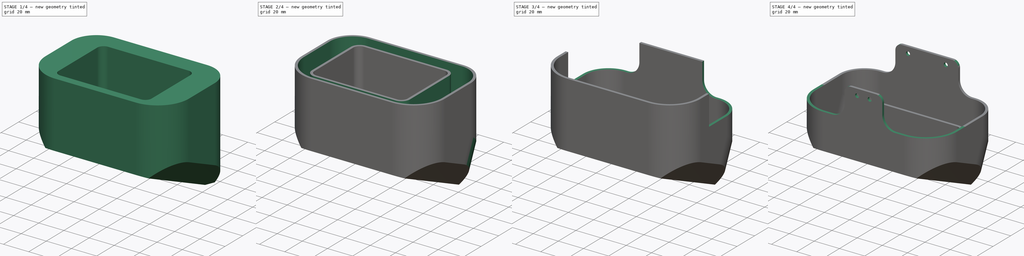
[diagram: build sequence overview — one tinted view per stage of 4, left to right]
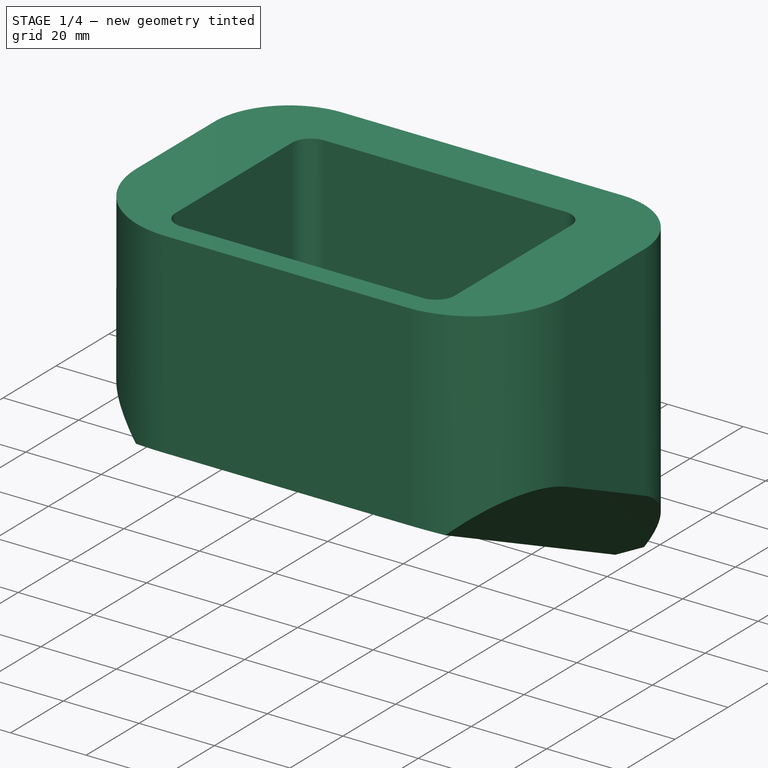
[diagram: stage 1 of 4 — iso view after this stage's code; geometry added in this stage tinted green]
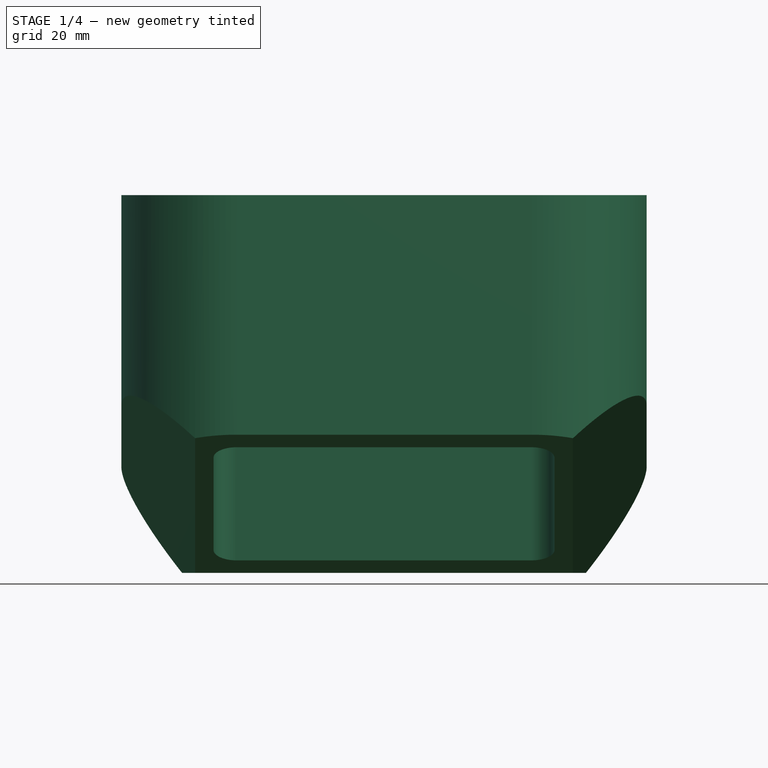
[diagram: stage 1 of 4 — front view after this stage's code; geometry added in this stage tinted green]
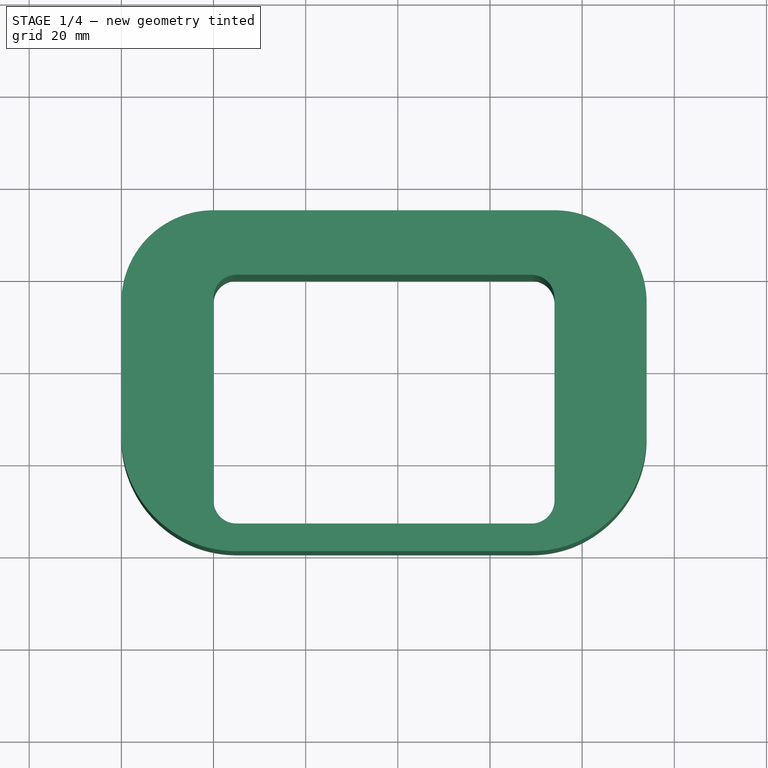
[diagram: stage 1 of 4 — top view after this stage's code; geometry added in this stage tinted green]
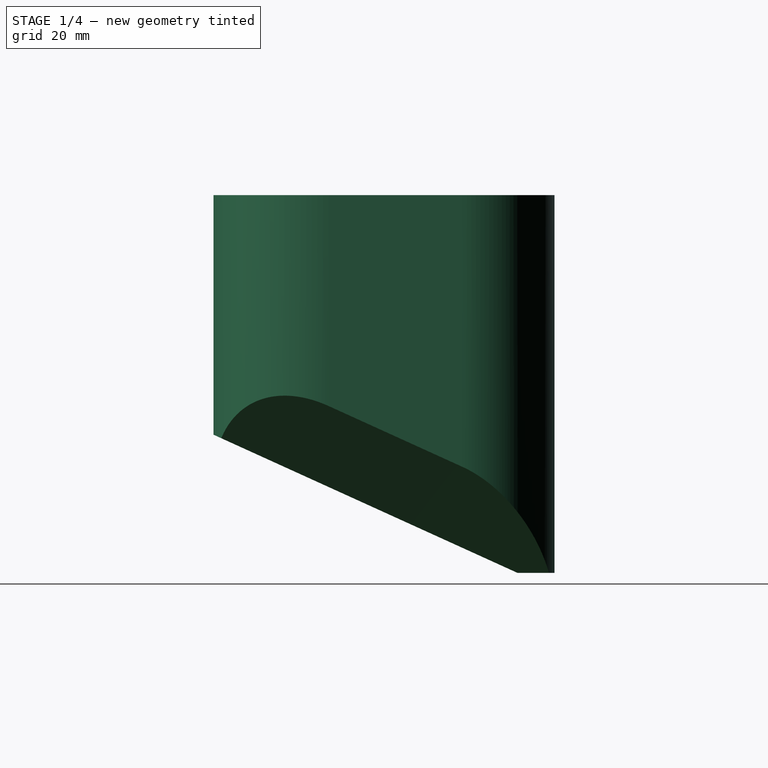
[diagram: stage 1 of 4 — right view after this stage's code; geometry added in this stage tinted green]
FCSTD DOCUMENT  (FreeCAD 0.18R4 (GitTag))
Label: Front_Cover
License: CreativeCommons Attribution-NonCommercial
LicenseURL: http://creativecommons.org/licenses/by-nc/4.0/
objects: Sketcher::SketchObject×11, PartDesign::Pocket×11, PartDesign::Pad×1, PartDesign::Plane×1, PartDesign::Thickness×1, PartDesign::Fillet×1, PartDesign::Body×1
note: 39 computed .brp shape members not serialized (recipe doc carries the construction recipe); baked Part::Feature solids carry a one-line shape summary decoded from their .brp

FEATURE [Sketcher::SketchObject] Sketch
  MapMode = 5
  Support = -> [XY_Plane]
  sketch-geometry (8):
    g0: ArcOfCircle CenterX=25 CenterY=25 CenterZ=0 NormalX=0 NormalY=0 NormalZ=1 AngleXU=0 Radius=25 StartAngle=3.14159 EndAngle=4.71239
    g1: ArcOfCircle CenterX=20 CenterY=54 CenterZ=0 NormalX=0 NormalY=0 NormalZ=1 AngleXU=0 Radius=20 StartAngle=1.5708 EndAngle=3.14159
    g2: ArcOfCircle CenterX=94 CenterY=54 CenterZ=0 NormalX=0 NormalY=0 NormalZ=1 AngleXU=0 Radius=20 StartAngle=0 EndAngle=1.5708
    g3: ArcOfCircle CenterX=89 CenterY=25 CenterZ=0 NormalX=0 NormalY=0 NormalZ=1 AngleXU=0 Radius=25 StartAngle=4.71239 EndAngle=6.28319
    g4: LineSegment StartX=0 StartY=54 StartZ=0 EndX=0 EndY=25 EndZ=0
    g5: LineSegment StartX=25 StartY=0 StartZ=0 EndX=89 EndY=0 EndZ=0
    g6: LineSegment StartX=114 StartY=25 StartZ=0 EndX=114 EndY=54 EndZ=0
    g7: LineSegment StartX=20 StartY=74 StartZ=0 EndX=94 EndY=74 EndZ=0
  constraints (21):
    c: Tangent(g1,g4) = -1.5708
    c: Tangent(g3,g6) = -1.5708
    c: Horizontal(g7)
    c: Vertical(g4)
    c: Vertical(g6)
    c: Horizontal(g5)
    c: Horizontal(g3,g0)
    c: Horizontal(g1,g2)
    c: Coincident(g0,g5)
    c: Vertical(g0,g0)
    c: Radius(g2) = 20
    c: Radius(g3) = 25
    c: PointOnObject(g0,g-1)
    c: Tangent(g4,g0) = -1.5708
    c: Tangent(g7,g1) = 1.5708
    c: Tangent(g7,g2) = 1.5708
    c: Tangent(g6,g2) = -1.5708
    c: Tangent(g5,g3) = -1.5708
    c: DistanceX(g1,g2) = 114
    c: DistanceY(g0,g1) = 74
    c: PointOnObject(g0,g-2)
FEATURE [PartDesign::Pad] Pad  label="Baseplate"
  Length = 82
  Length2 = 100
  Profile = -> Sketch
  Type = 0
FEATURE [Sketcher::SketchObject] Sketch001
  MapMode = 5
  Placement = pos=(0,0,0) rot=(0.57735,0.57735,0.57735;2.0944rad)
  Support = -> [YZ_Plane]
  sketch-geometry (3):
    g0: LineSegment StartX=0 StartY=0 StartZ=0 EndX=0 EndY=30 EndZ=0
    g1: LineSegment StartX=0 StartY=30 StartZ=0 EndX=66 EndY=0 EndZ=0
    g2: LineSegment StartX=66 StartY=0 StartZ=0 EndX=0 EndY=0 EndZ=0
  constraints (9):
    c: Coincident(g-1,g0)
    c: PointOnObject(g0,g-2)
    c: Coincident(g0,g1)
    c: PointOnObject(g1,g-1)
    c: Coincident(g1,g2)
    c: DistanceY(g0,g0) = 30
    c: DistanceX(g2,g2) = 66
    c: Coincident(g2,g0)
    c: Angle(g0,g1) = 1.14417
FEATURE [PartDesign::Pocket] Pocket  label="Tilt Nose"
  BaseFeature = -> Pad
  Length = 114
  Length2 = 100
  Profile = -> Sketch001
  Reversed = true
  Type = 0
FEATURE [Sketcher::SketchObject] Sketch002
  MapMode = 5
  Placement = pos=(0,0,82) rot=(0,0,1;0rad)
  Support = -> [Pocket]
  sketch-geometry (8):
    g0: LineSegment StartX=25 StartY=60 StartZ=0 EndX=89 EndY=60 EndZ=0
    g1: LineSegment StartX=94 StartY=55 StartZ=0 EndX=94 EndY=11 EndZ=0
    g2: LineSegment StartX=89 StartY=6 StartZ=0 EndX=25 EndY=6 EndZ=0
    g3: LineSegment StartX=20 StartY=11 StartZ=0 EndX=20 EndY=55 EndZ=0
    g4: ArcOfCircle CenterX=25 CenterY=55 CenterZ=0 NormalX=0 NormalY=0 NormalZ=1 AngleXU=0 Radius=5 StartAngle=1.5708 EndAngle=3.14159
    g5: ArcOfCircle CenterX=89 CenterY=55 CenterZ=0 NormalX=0 NormalY=0 NormalZ=1 AngleXU=0 Radius=5 StartAngle=0 EndAngle=1.5708
    g6: ArcOfCircle CenterX=89 CenterY=11 CenterZ=0 NormalX=0 NormalY=0 NormalZ=1 AngleXU=0 Radius=5 StartAngle=4.71239 EndAngle=6.28319
    g7: ArcOfCircle CenterX=25 CenterY=11 CenterZ=0 NormalX=0 NormalY=0 NormalZ=1 AngleXU=0 Radius=5 StartAngle=3.14159 EndAngle=4.71239
  constraints (20):
    c: Horizontal(g0)
    c: Horizontal(g2)
    c: Vertical(g1)
    c: Vertical(g3)
    c: Tangent(g3,g4) = 1.5708
    c: Tangent(g0,g4) = 1.5708
    c: Tangent(g0,g5) = 1.5708
    c: Tangent(g1,g5) = 1.5708
    c: Tangent(g1,g6) = 1.5708
    c: Tangent(g2,g6) = 1.5708
    c: Tangent(g2,g7) = 1.5708
    c: Tangent(g3,g7) = 1.5708
    c: Equal(g4,g7)
    c: Equal(g7,g5)
    c: Equal(g5,g6)
    c: Radius(g5) = 5
    c: DistanceX(g-1,g3) = 20
    c: DistanceY(g-1,g7) = 11
    c: DistanceX(g4,g5) = 64
    c: DistanceY(g6,g5) = 44
FEATURE [PartDesign::Pocket] Pocket001  label="Sensorhole"
  BaseFeature = -> Pocket
  Length = 0
  Length2 = 100
  Profile = -> Sketch002
  Type = 1
FEATURE [PartDesign::Plane] DatumPlane
  Length = 148.245
  MapMode = 7
  Placement = pos=(0,25,18.6364) rot=(1,0,0;1.14417rad)
  ResizeMode = 0
  Support = -> [Pocket001]
  Width = 142.758
FEATURE [Sketcher::SketchObject] Sketch003
  MapMode = 5
  Placement = pos=(0,25,18.6364) rot=(1,0,0;1.14417rad)
  Support = -> [DatumPlane]
  sketch-geometry (6):
    g0: LineSegment StartX=0 StartY=0 StartZ=0 EndX=0 EndY=16 EndZ=0
    g1: LineSegment StartX=0 StartY=16 StartZ=0 EndX=16 EndY=0 EndZ=0
    g2: LineSegment StartX=16 StartY=0 StartZ=0 EndX=0 EndY=0 EndZ=0
    g3: LineSegment StartX=98 StartY=0 StartZ=0 EndX=114 EndY=0 EndZ=0
    g4: LineSegment StartX=114 StartY=0 StartZ=0 EndX=114 EndY=16 EndZ=0
    g5: LineSegment StartX=114 StartY=16 StartZ=0 EndX=98 EndY=0 EndZ=0
  constraints (18):
    c: PointOnObject(g0,g-2)
    c: Vertical(g0)
    c: Coincident(g0,g1)
    c: PointOnObject(g1,g-1)
    c: Coincident(g1,g2)
    c: Coincident(g2,g0)
    c: Horizontal(g2)
    c: Horizontal(g3)
    c: Coincident(g3,g4)
    c: Vertical(g4)
    c: Coincident(g4,g5)
    c: Equal(g0,g2)
    c: Equal(g4,g3)
    c: Coincident(g5,g3)
    c: PointOnObject(g3,g-1)
    c: Equal(g2,g3)
    c: DistanceX(g0,g3) = 114
    c: DistanceX(g2,g2) = 16
FEATURE [PartDesign::Pocket] Pocket002  label="Sideburns"
  BaseFeature = -> Pocket001
  Length = 100
  Length2 = 100
  Profile = -> Sketch003
  Type = 4
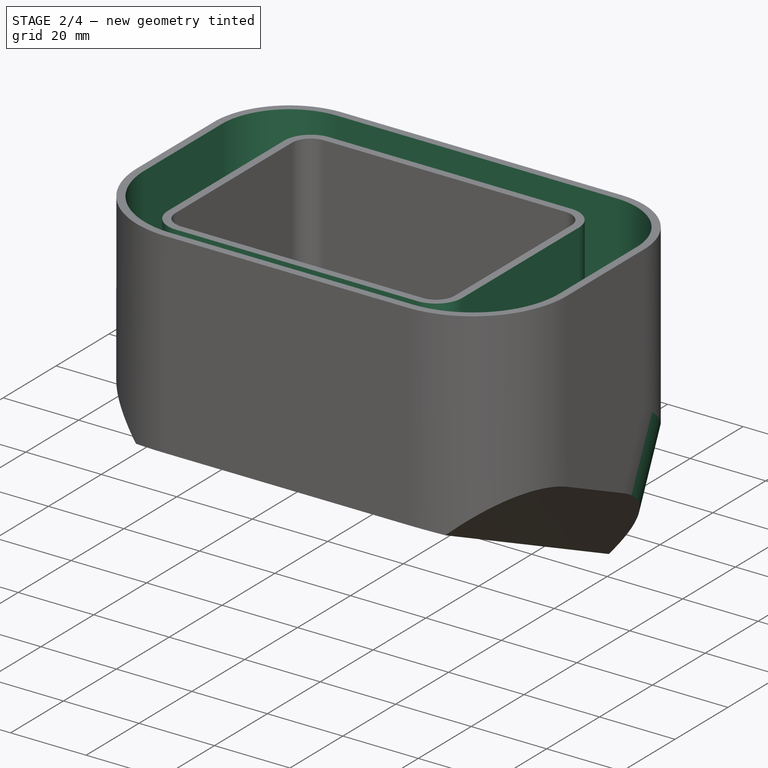
[diagram: stage 2 of 4 — iso view after this stage's code; geometry added in this stage tinted green]
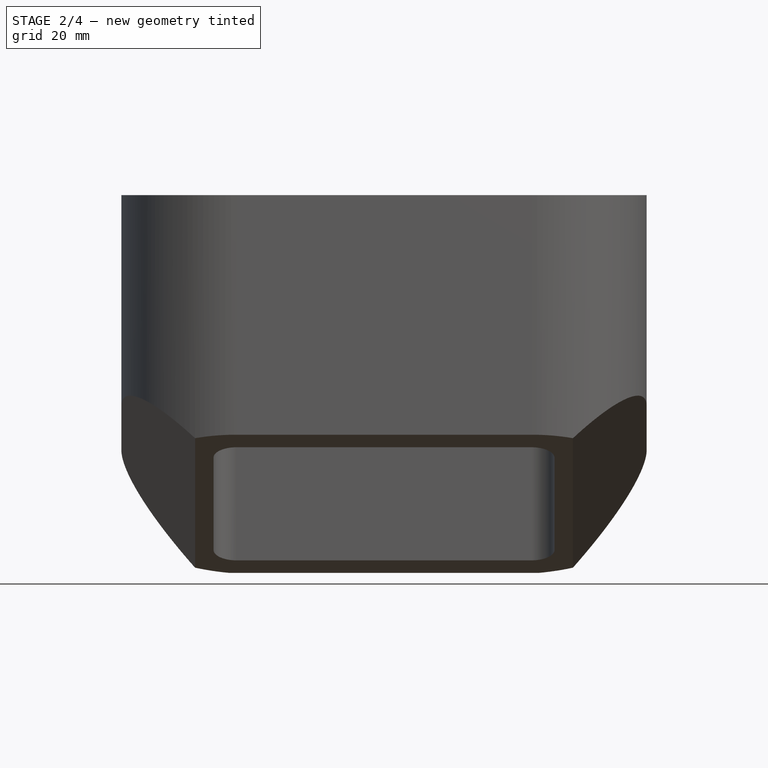
[diagram: stage 2 of 4 — front view after this stage's code; geometry added in this stage tinted green]
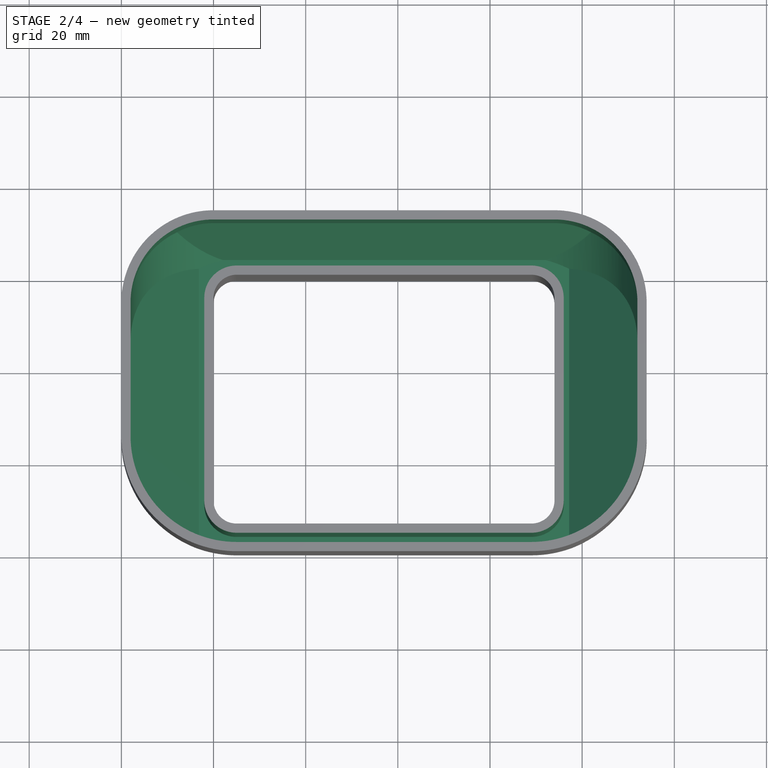
[diagram: stage 2 of 4 — top view after this stage's code; geometry added in this stage tinted green]
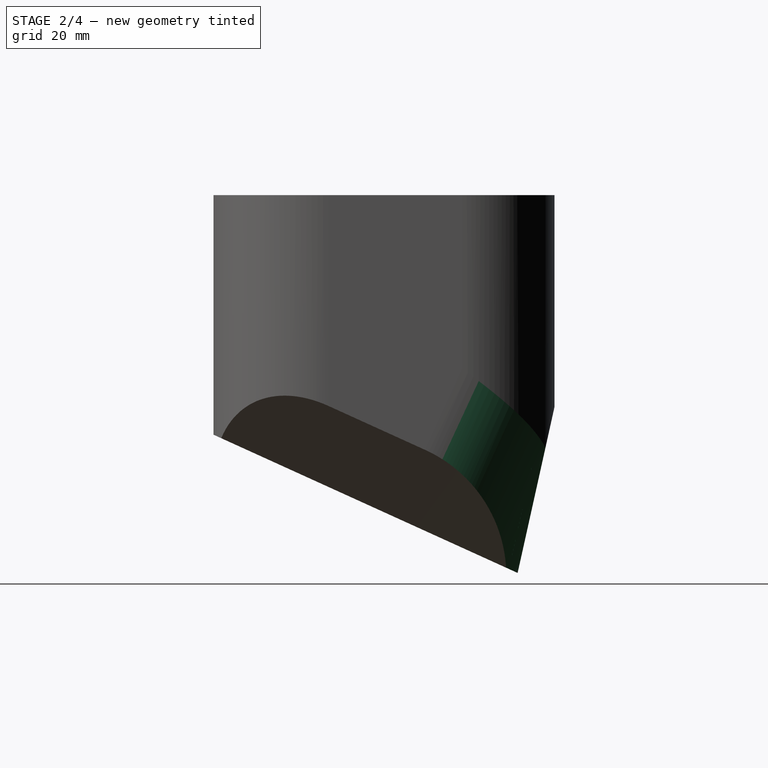
[diagram: stage 2 of 4 — right view after this stage's code; geometry added in this stage tinted green]
FEATURE [Sketcher::SketchObject] Sketch004
  MapMode = 5
  Placement = pos=(0,0,0) rot=(0.57735,0.57735,0.57735;2.0944rad)
  Support = -> [YZ_Plane]
  sketch-geometry (3):
    g0: LineSegment StartX=66 StartY=0 StartZ=0 EndX=76 EndY=45 EndZ=0
    g1: LineSegment StartX=76 StartY=45 StartZ=0 EndX=76 EndY=0 EndZ=0
    g2: LineSegment StartX=76 StartY=0 StartZ=0 EndX=66 EndY=0 EndZ=0
  constraints (9):
    c: PointOnObject(g0,g-1)
    c: Coincident(g0,g1)
    c: PointOnObject(g1,g-1)
    c: Vertical(g1)
    c: Coincident(g1,g2)
    c: Coincident(g2,g0)
    c: DistanceX(g-1,g0) = 66
    c: DistanceX(g2,g2) = 10
    c: DistanceY(g1,g1) = 45
FEATURE [PartDesign::Pocket] Pocket003  label="Tilt Head"
  BaseFeature = -> Pocket002
  Length = 110
  Length2 = 100
  Profile = -> Sketch004
  Reversed = true
  Type = 0
FEATURE [Sketcher::SketchObject] Sketch005
  MapMode = 5
  Placement = pos=(-4.4e-15,11.3014,24.863) rot=(1,0,0;2.71496rad)
  Support = -> [Pocket003]
  sketch-geometry (6):
    g0: ArcOfCircle CenterX=30 CenterY=-30.8 CenterZ=0 NormalX=0 NormalY=0 NormalZ=1 AngleXU=0 Radius=30 StartAngle=3.14159 EndAngle=4.71239
    g1: ArcOfCircle CenterX=84 CenterY=-30.8 CenterZ=0 NormalX=0 NormalY=0 NormalZ=1 AngleXU=0 Radius=30 StartAngle=4.71239 EndAngle=6.28319
    g2: LineSegment StartX=30 StartY=-60.8 StartZ=0 EndX=84 EndY=-60.8 EndZ=0
    g3: LineSegment StartX=114 StartY=-30.8 StartZ=0 EndX=114 EndY=-80.8 EndZ=0
    g4: LineSegment StartX=114 StartY=-80.8 StartZ=0 EndX=0 EndY=-80.8 EndZ=0
    g5: LineSegment StartX=0 StartY=-80.8 StartZ=0 EndX=0 EndY=-30.8 EndZ=0
  constraints (16):
    c: PointOnObject(g0,g-2)
    c: Horizontal(g2)
    c: Coincident(g3,g4)
    c: Horizontal(g4)
    c: Coincident(g4,g5)
    c: Tangent(g0,g5) = 1.5708
    c: PointOnObject(g4,g-2)
    c: Tangent(g1,g3) = 1.5708
    c: Vertical(g3)
    c: Tangent(g2,g0) = -1.5708
    c: Tangent(g2,g1) = -1.5708
    c: Equal(g0,g1)
    c: Radius(g1) = 30
    c: DistanceX(g4,g4) = 114
    c: DistanceY(g0,g-1) = 60.8
    c: DistanceY(g4,g0) = 20
FEATURE [PartDesign::Pocket] Pocket004  label="Round Tilt Head"
  BaseFeature = -> Pocket003
  Length = 50
  Length2 = 100
  Profile = -> Sketch005
  Type = 0
FEATURE [PartDesign::Thickness] Thickness  label="Make Shell"
  Base = -> Pocket004 [Face5]
  BaseFeature = -> Pocket004
  Join = 0
  Mode = 0
  Reversed = true
  Value = 2
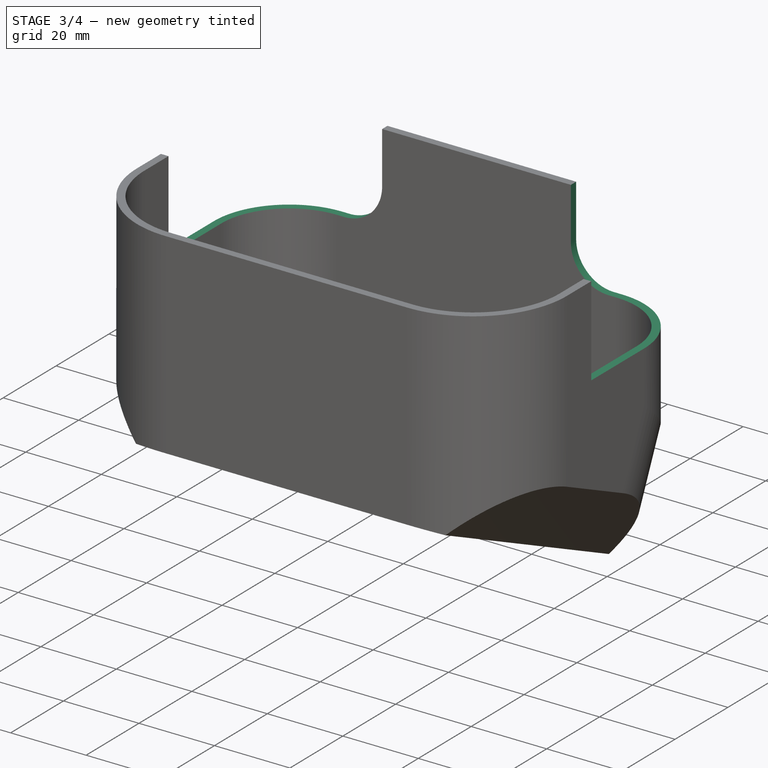
[diagram: stage 3 of 4 — iso view after this stage's code; geometry added in this stage tinted green]
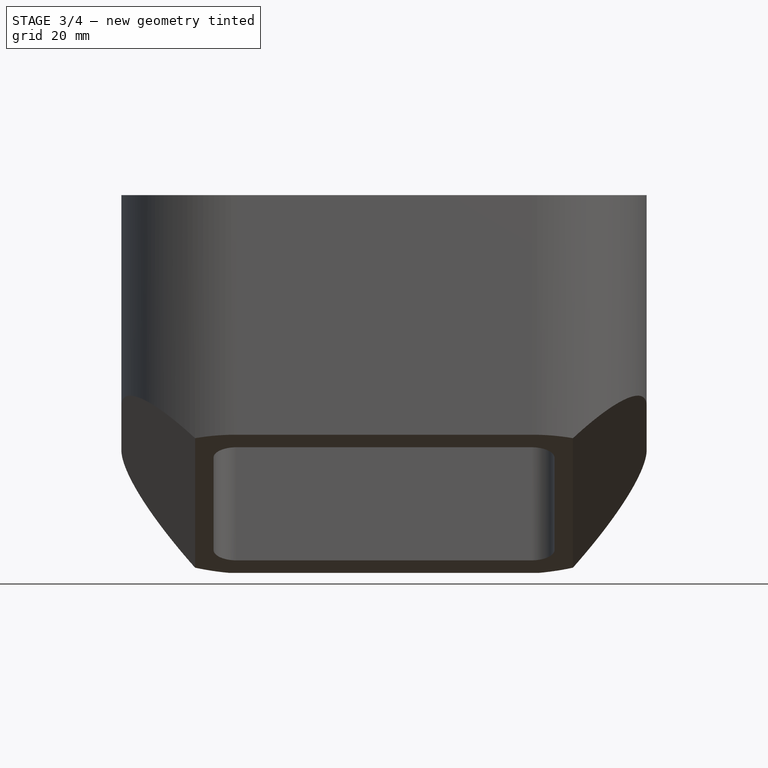
[diagram: stage 3 of 4 — front view after this stage's code; geometry added in this stage tinted green]
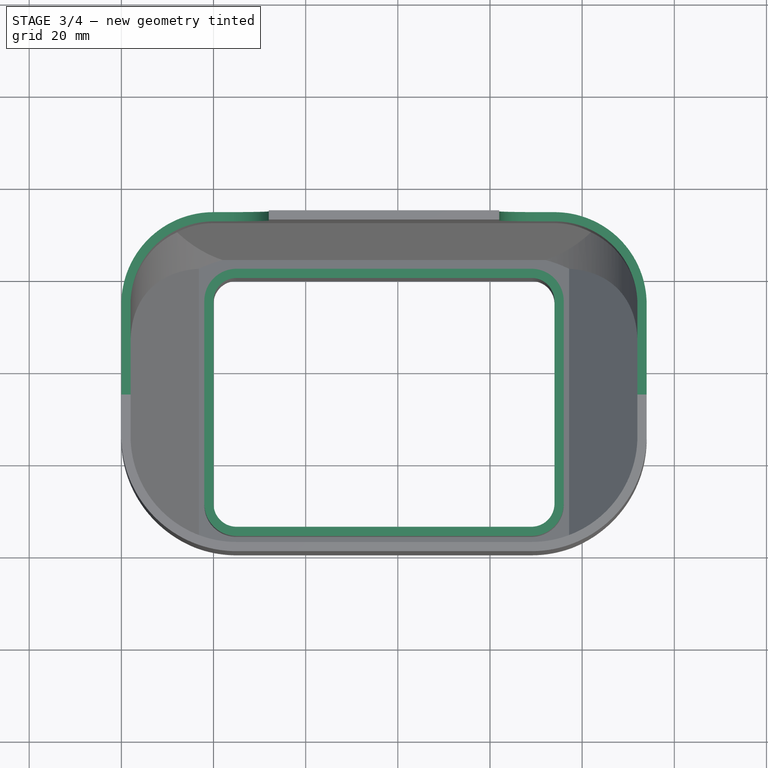
[diagram: stage 3 of 4 — top view after this stage's code; geometry added in this stage tinted green]
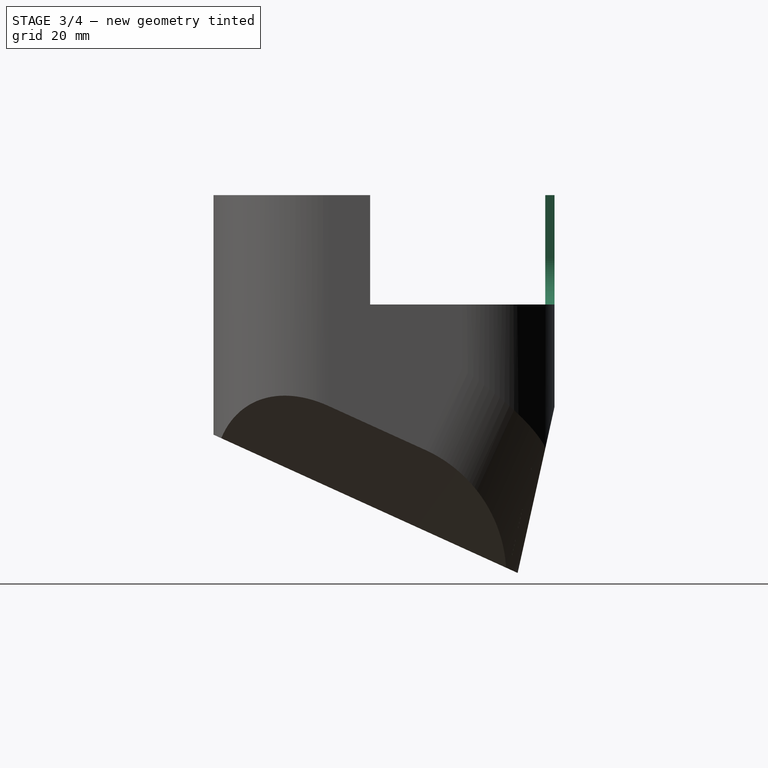
[diagram: stage 3 of 4 — right view after this stage's code; geometry added in this stage tinted green]
FEATURE [Sketcher::SketchObject] Sketch006
  MapMode = 5
  Placement = pos=(20,0,0) rot=(0.57735,0.57735,0.57735;2.0944rad)
  sketch-geometry (1):
    g0: Circle CenterX=33 CenterY=37 CenterZ=0 NormalX=0 NormalY=0 NormalZ=1 AngleXU=0 Radius=1.6
  constraints (3):
    c: DistanceX(g-1,g0) = 33
    c: DistanceY(g-1,g0) = 37
    c: Radius(g0) = 1.6
FEATURE [PartDesign::Pocket] Pocket006  label="Sensorhole Screwholes"
  BaseFeature = -> Thickness
  Length = 5
  Length2 = 83
  Profile = -> Sketch006
  Type = 4
FEATURE [Sketcher::SketchObject] Sketch007
  MapMode = 5
  Placement = pos=(0,74,0) rot=(0,0.707107,0.707107;3.14159rad)
  Support = -> [Pocket006]
  sketch-geometry (10):
    g0: LineSegment StartX=-114 StartY=82 StartZ=0 EndX=-82 EndY=82 EndZ=0
    g1: LineSegment StartX=-82 StartY=82 StartZ=0 EndX=-82 EndY=68.25 EndZ=0
    g2: LineSegment StartX=-92 StartY=58.25 StartZ=0 EndX=-114 EndY=58.25 EndZ=0
    g3: LineSegment StartX=-114 StartY=58.25 StartZ=0 EndX=-114 EndY=82 EndZ=0
    g4: LineSegment StartX=0 StartY=82 StartZ=0 EndX=-32 EndY=82 EndZ=0
    g5: LineSegment StartX=-32 StartY=82 StartZ=0 EndX=-32 EndY=68.25 EndZ=0
    g6: LineSegment StartX=-22 StartY=58.25 StartZ=0 EndX=0 EndY=58.25 EndZ=0
    g7: LineSegment StartX=0 StartY=58.25 StartZ=0 EndX=0 EndY=82 EndZ=0
    g8: ArcOfCircle CenterX=-92 CenterY=68.25 CenterZ=0 NormalX=0 NormalY=0 NormalZ=1 AngleXU=0 Radius=10 StartAngle=4.71239 EndAngle=6.28319
    g9: ArcOfCircle CenterX=-22 CenterY=68.25 CenterZ=0 NormalX=0 NormalY=0 NormalZ=1 AngleXU=0 Radius=10 StartAngle=3.14159 EndAngle=4.71239
  constraints (28):
    c: Coincident(g0,g1)
    c: Coincident(g2,g3)
    c: Coincident(g3,g0)
    c: Horizontal(g0)
    c: Horizontal(g2)
    c: Vertical(g1)
    c: Vertical(g3)
    c: Coincident(g4,g5)
    c: Coincident(g6,g7)
    c: Coincident(g7,g4)
    c: Horizontal(g4)
    c: Horizontal(g6)
    c: Vertical(g5)
    c: Vertical(g7)
    c: PointOnObject(g4,g-2)
    c: Tangent(g2,g8) = 1.5708
    c: Tangent(g1,g8) = 1.5708
    c: Tangent(g5,g9) = -1.5708
    c: Tangent(g6,g9) = -1.5708
    c: Equal(g9,g8)
    c: Radius(g8) = 10
    c: Horizontal(g0,g4)
    c: Equal(g0,g4)
    c: Equal(g3,g7)
    c: DistanceX(g0,g4) = 50
    c: DistanceX(g0,g4) = 114
    c: DistanceY(g3,g3) = 23.75
    c: DistanceY(g-1,g4) = 82
FEATURE [PartDesign::Pocket] Pocket011
  BaseFeature = -> Pocket006
  Length = 40
  Length2 = 100
  Profile = -> Pocket006 [Face38]
  Type = 0
FEATURE [PartDesign::Pocket] Pocket007  label="Top Removal"
  BaseFeature = -> Pocket011
  Length = 40
  Length2 = 100
  Profile = -> Sketch007
  Type = 0
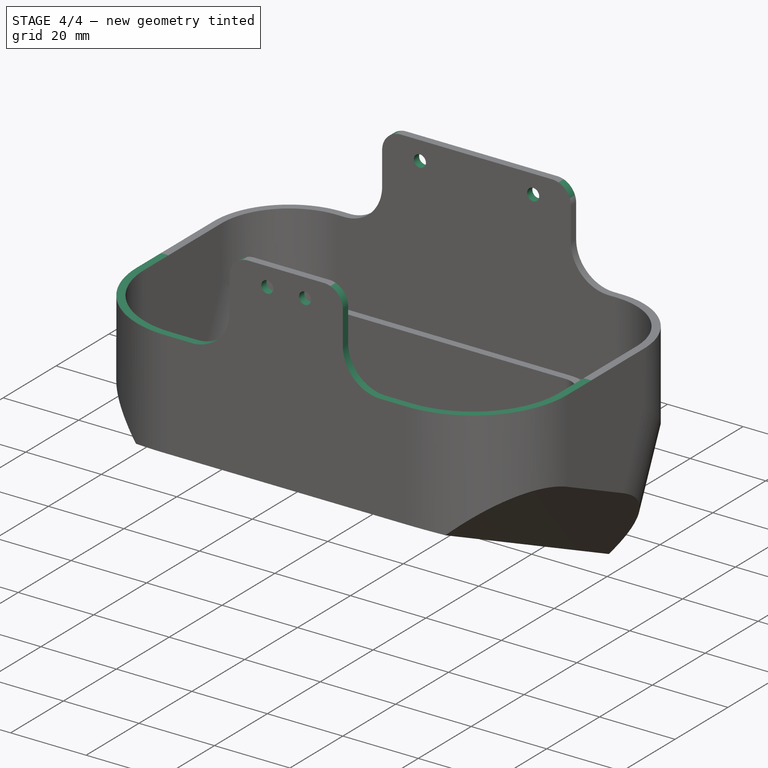
[diagram: stage 4 of 4 — iso view after this stage's code; geometry added in this stage tinted green]
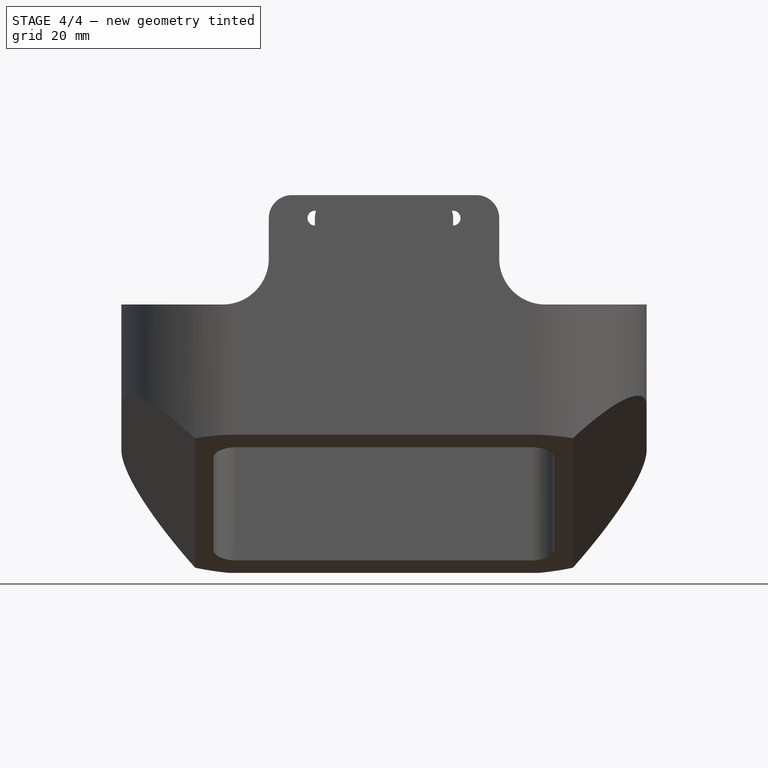
[diagram: stage 4 of 4 — front view after this stage's code; geometry added in this stage tinted green]
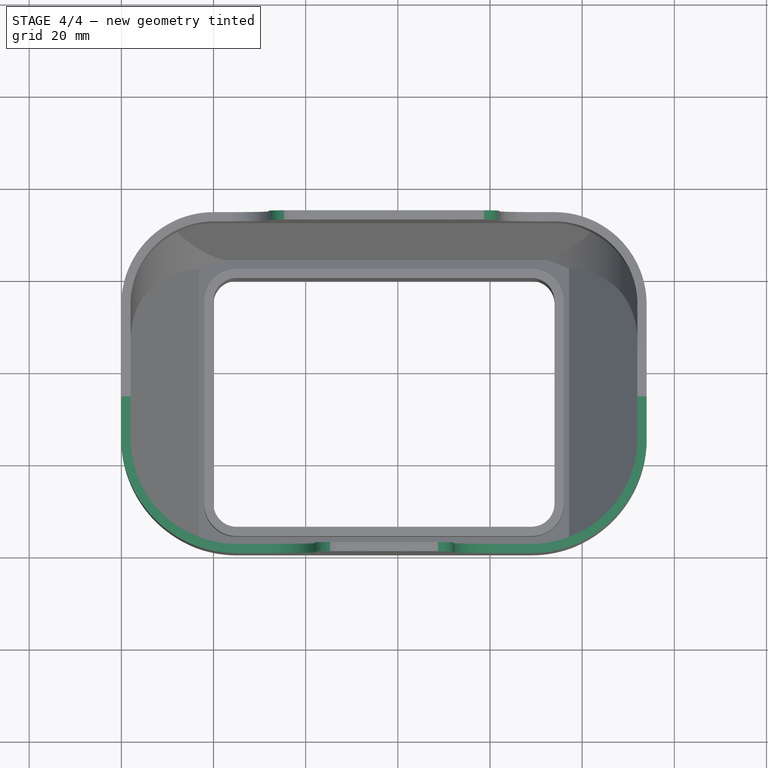
[diagram: stage 4 of 4 — top view after this stage's code; geometry added in this stage tinted green]
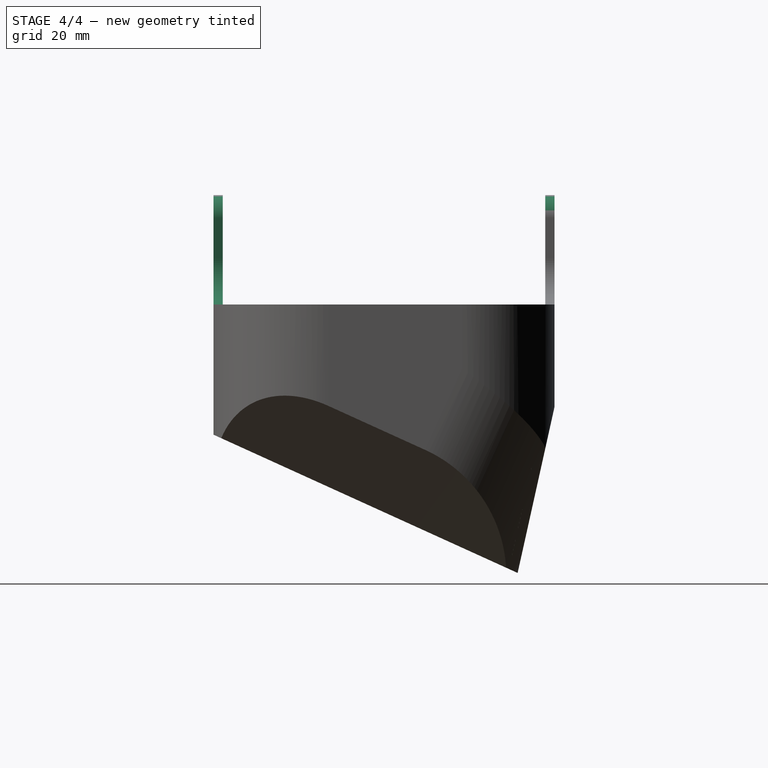
[diagram: stage 4 of 4 — right view after this stage's code; geometry added in this stage tinted green]
FEATURE [Sketcher::SketchObject] Sketch008
  MapMode = 5
  Placement = pos=(0,0,0) rot=(1,0,0;1.5708rad)
  Support = -> [Pocket007]
  sketch-geometry (10):
    g0: LineSegment StartX=0 StartY=82 StartZ=0 EndX=42 EndY=82 EndZ=0
    g1: LineSegment StartX=42 StartY=82 StartZ=0 EndX=42 EndY=68.25 EndZ=0
    g2: LineSegment StartX=32 StartY=58.25 StartZ=0 EndX=0 EndY=58.25 EndZ=0
    g3: LineSegment StartX=0 StartY=58.25 StartZ=0 EndX=0 EndY=82 EndZ=0
    g4: LineSegment StartX=114 StartY=82 StartZ=0 EndX=72 EndY=82 EndZ=0
    g5: LineSegment StartX=72 StartY=82 StartZ=0 EndX=72 EndY=68.25 EndZ=0
    g6: LineSegment StartX=82 StartY=58.25 StartZ=0 EndX=114 EndY=58.25 EndZ=0
    g7: LineSegment StartX=114 StartY=58.25 StartZ=0 EndX=114 EndY=82 EndZ=0
    g8: ArcOfCircle CenterX=32 CenterY=68.25 CenterZ=0 NormalX=0 NormalY=0 NormalZ=1 AngleXU=0 Radius=10 StartAngle=4.71239 EndAngle=6.28319
    g9: ArcOfCircle CenterX=82 CenterY=68.25 CenterZ=0 NormalX=0 NormalY=0 NormalZ=1 AngleXU=0 Radius=10 StartAngle=3.14159 EndAngle=4.71239
  constraints (28):
    c: Coincident(g0,g1)
    c: Coincident(g2,g3)
    c: Coincident(g3,g0)
    c: Horizontal(g0)
    c: Horizontal(g2)
    c: Vertical(g1)
    c: Vertical(g3)
    c: PointOnObject(g0,g-2)
    c: Coincident(g4,g5)
    c: Coincident(g6,g7)
    c: Coincident(g7,g4)
    c: Horizontal(g4)
    c: Horizontal(g6)
    c: Vertical(g5)
    c: Vertical(g7)
    c: Tangent(g2,g8) = 1.5708
    c: Tangent(g1,g8) = 1.5708
    c: Tangent(g5,g9) = -1.5708
    c: Tangent(g6,g9) = -1.5708
    c: Radius(g8) = 10
    c: Equal(g8,g9)
    c: Equal(g0,g4)
    c: Equal(g3,g7)
    c: Horizontal(g0,g4)
    c: DistanceX(g0,g4) = 30
    c: DistanceX(g0,g4) = 114
    c: DistanceY(g3,g3) = 23.75
    c: DistanceY(g-1,g0) = 82
FEATURE [PartDesign::Pocket] Pocket008  label="Bottom Removal"
  BaseFeature = -> Pocket007
  Length = 40
  Length2 = 100
  Profile = -> Sketch008
  Type = 0
FEATURE [PartDesign::Fillet] Fillet  label="Round Corners"
  Base = -> Pocket008 [Edge83,Edge84,Edge147,Edge146]
  BaseFeature = -> Pocket008
  Radius = 5
FEATURE [Sketcher::SketchObject] Sketch009
  MapMode = 5
  Placement = pos=(0,74,0) rot=(0,0.707107,0.707107;3.14159rad)
  Support = -> [Fillet]
  sketch-geometry (2):
    g0: Circle CenterX=-72 CenterY=77 CenterZ=0 NormalX=0 NormalY=0 NormalZ=1 AngleXU=0 Radius=1.6
    g1: Circle CenterX=-42 CenterY=77 CenterZ=0 NormalX=0 NormalY=0 NormalZ=1 AngleXU=0 Radius=1.6
  constraints (6):
    c: Equal(g1,g0)
    c: Horizontal(g0,g1)
    c: Radius(g1) = 1.6
    c: DistanceX(g0,g1) = 30
    c: DistanceX(g1,g-1) = 42
    c: DistanceY(g-1,g1) = 77
FEATURE [PartDesign::Pocket] Pocket009  label="Screwholes Top"
  BaseFeature = -> Fillet
  Length = 5
  Length2 = 100
  Profile = -> Sketch009
  Type = 0
FEATURE [Sketcher::SketchObject] Sketch010
  MapMode = 5
  Placement = pos=(0,0,0) rot=(1,0,0;1.5708rad)
  Support = -> [Pocket009]
  sketch-geometry (2):
    g0: Circle CenterX=52 CenterY=77 CenterZ=0 NormalX=0 NormalY=0 NormalZ=1 AngleXU=0 Radius=1.6
    g1: Circle CenterX=62 CenterY=77 CenterZ=0 NormalX=0 NormalY=0 NormalZ=1 AngleXU=0 Radius=1.6
  constraints (6):
    c: Equal(g1,g0)
    c: Radius(g1) = 1.6
    c: Horizontal(g0,g1)
    c: DistanceX(g0,g1) = 10
    c: DistanceY(g-1,g1) = 77
    c: DistanceX(g-1,g0) = 52
FEATURE [PartDesign::Pocket] Pocket010  label="Screwholes Bottom"
  BaseFeature = -> Pocket009
  Length = 5
  Length2 = 100
  Profile = -> Sketch010
  Type = 0
FEATURE [PartDesign::Body] Body  label="Front_Cover"
  Group = -> [Sketch,Pad,Sketch001,Pocket,Sketch002,Pocket001,DatumPlane,Sketch003,Pocket002,Sketch004,Pocket003,Sketch005,Pocket004,Thickness,Sketch006,Pocket006,Sketch007,Pocket011,Pocket007,Sketch008,Pocket008,Fillet,Sketch009,Pocket009,Sketch010,Pocket010]
  Origin = -> Origin
  Placement = pos=(0,0,0) rot=(1,0,0;0.426558rad)
  Tip = -> Pocket010
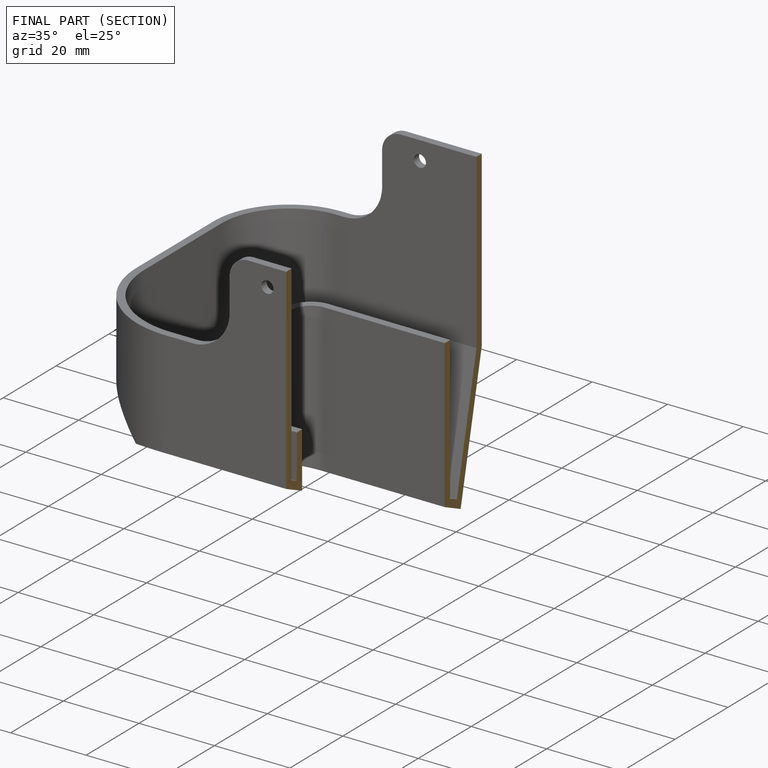
[diagram: finished part — half-section view (interior)]
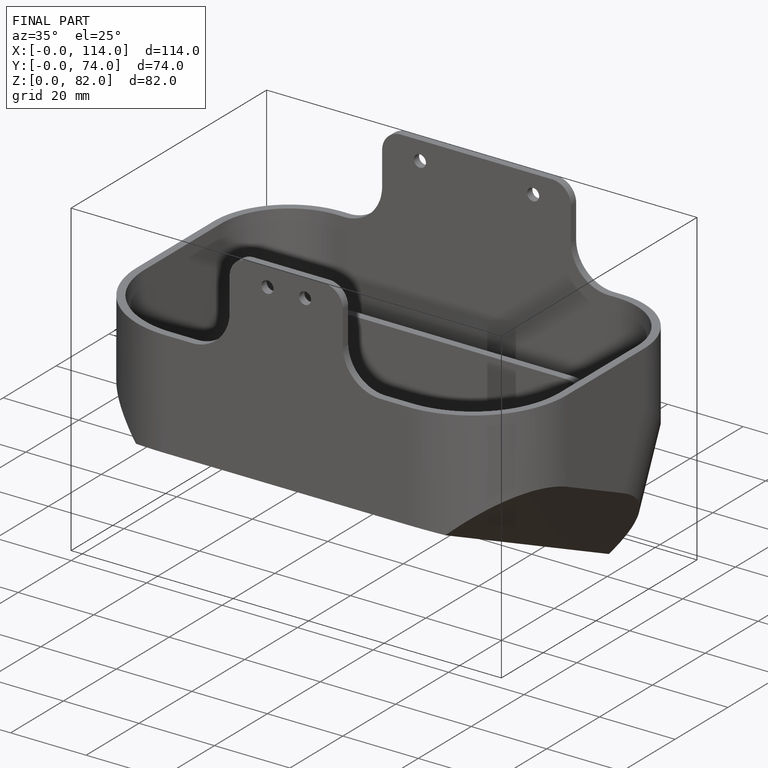
[diagram: finished part — iso view with bounding-box wireframe]
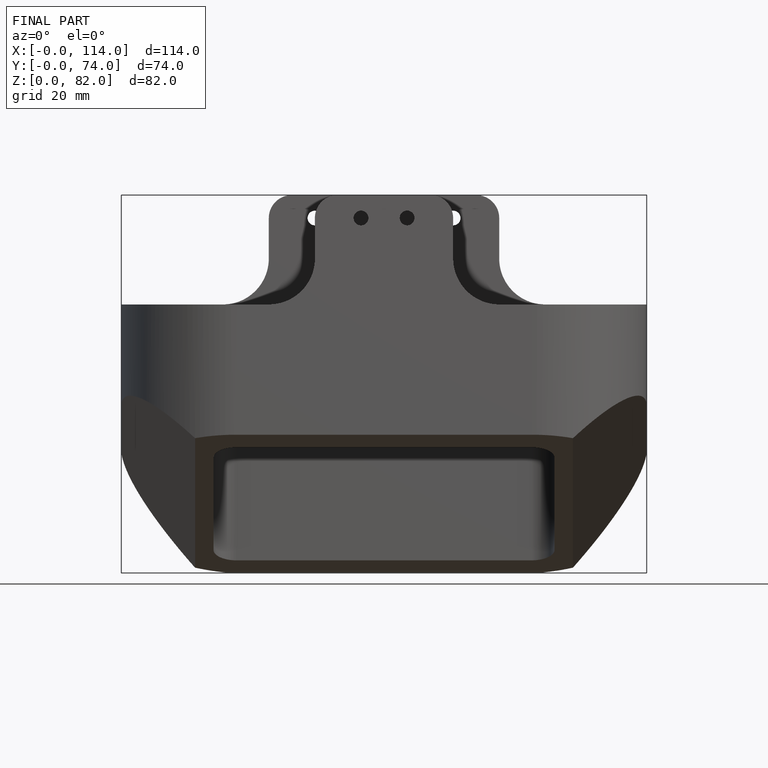
[diagram: finished part — front view with bounding-box wireframe]
